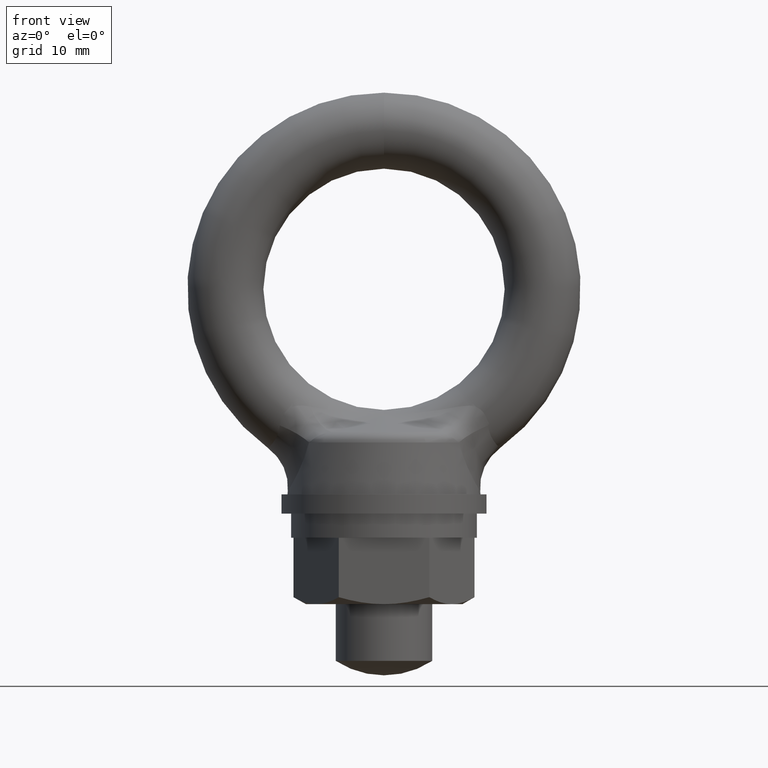
[diagram: clean part render]
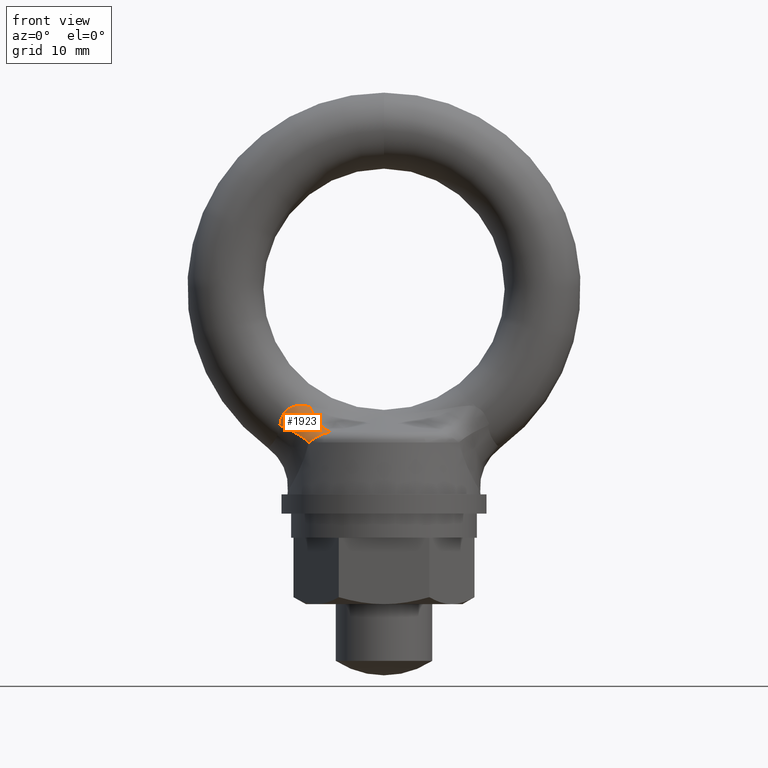
[diagram: same view with one face highlighted and labeled with its STEP entity id]
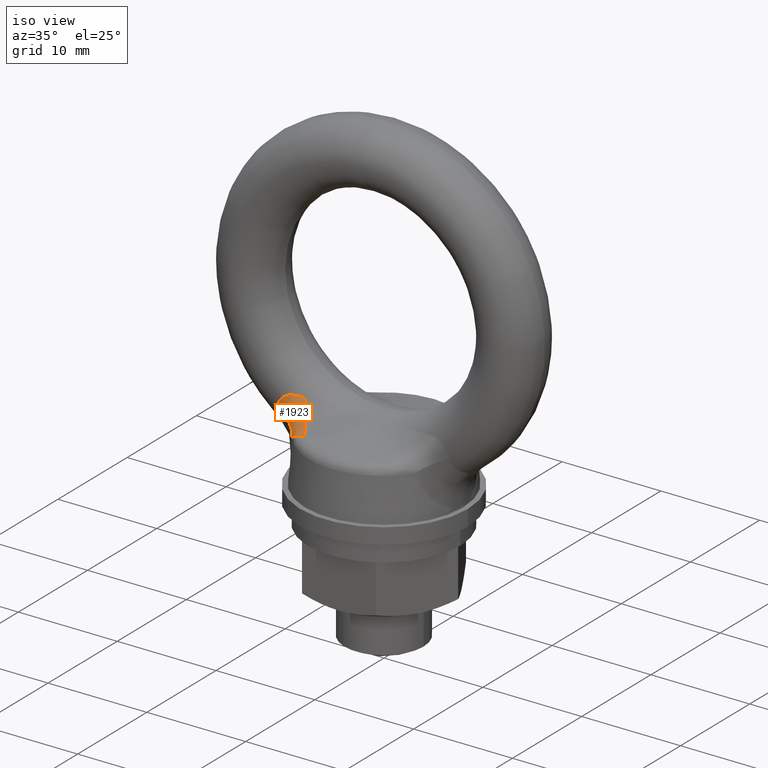
[diagram: same view with one face highlighted and labeled with its STEP entity id]
A machine part, front view. The second image highlights one B-rep face of the part: STEP entity #1923.
A second angle (iso view) of the same face is appended — the face is thin or edge-on in the first view.
In plain terms, the highlighted face is a freeform B-spline surface patch.
Its self-contained STEP definition (entity closure, byte-faithful):
#1870 = VERTEX_POINT ( 'NONE', #2676 ) ;
#1871 = VERTEX_POINT ( 'NONE', #2678 ) ;
#1917 = EDGE_CURVE ( 'NONE', #1871, #1870, #2623, .T. ) ;
#1923 = ADVANCED_FACE ( 'NONE', ( #2601 ), #2956, .F. ) ;
#1924 = EDGE_LOOP ( 'NONE', ( #1992, #1993, #1994, #1996 ) ) ;
#1988 = EDGE_CURVE ( 'NONE', #2008, #1989, #3318, .T. ) ;
#1989 = VERTEX_POINT ( 'NONE', #2739 ) ;
#1992 = ORIENTED_EDGE ( 'NONE', *, *, #2033, .T. ) ;
#1993 = ORIENTED_EDGE ( 'NONE', *, *, #1917, .F. ) ;
#1994 = ORIENTED_EDGE ( 'NONE', *, *, #1995, .F. ) ;
#1995 = EDGE_CURVE ( 'NONE', #1989, #1871, #2665, .T. ) ;
#1996 = ORIENTED_EDGE ( 'NONE', *, *, #1988, .F. ) ;
#2008 = VERTEX_POINT ( 'NONE', #3660 ) ;
#2033 = EDGE_CURVE ( 'NONE', #2008, #1870, #3782, .T. ) ;
#2239 = CARTESIAN_POINT ( 'NONE',  ( -7.687731019910080100, -3.069755996549758100, -9.768359361254232100 ) ) ;
#2431 = CARTESIAN_POINT ( 'NONE',  ( -7.281213677273273200, -2.968887560562097700, -9.653225894458497400 ) ) ;
#2432 = CARTESIAN_POINT ( 'NONE',  ( -7.555746027686884000, -3.038156767550210800, -9.718993856863784600 ) ) ;
#2599 = CARTESIAN_POINT ( 'NONE',  ( -7.139126643401124500, -2.931317358045899100, -9.637263160562232800 ) ) ;
#2600 = CARTESIAN_POINT ( 'NONE',  ( -6.929500092504966300, -2.972689276585328800, -9.922903800311665600 ) ) ;
#2601 = FACE_OUTER_BOUND ( 'NONE', #1924, .T. ) ;
#2610 = CARTESIAN_POINT ( 'NONE',  ( -6.210392761138069600, -4.421908272886815500, -12.69996661424272100 ) ) ;
#2611 = CARTESIAN_POINT ( 'NONE',  ( -6.108701972661631200, -4.549966588185697000, -12.60209868998017900 ) ) ;
#2612 = CARTESIAN_POINT ( 'NONE',  ( -5.992973220570785700, -4.664353236409687600, -12.50542347709155800 ) ) ;
#2613 = CARTESIAN_POINT ( 'NONE',  ( -5.731038722138584300, -4.864957518859458900, -12.31643497619548800 ) ) ;
#2614 = CARTESIAN_POINT ( 'NONE',  ( -5.586593888279771200, -4.949226157643265000, -12.22554908948153400 ) ) ;
#2616 = CARTESIAN_POINT ( 'NONE',  ( -5.272673823770076300, -5.085914180858788200, -12.06166346578539200 ) ) ;
#2617 = CARTESIAN_POINT ( 'NONE',  ( -5.103468905832866800, -5.137391313441046500, -11.98933713538986400 ) ) ;
#2618 = CARTESIAN_POINT ( 'NONE',  ( -4.750873693839806400, -5.224356366637041800, -11.87916124461906800 ) ) ;
#2619 = CARTESIAN_POINT ( 'NONE',  ( -4.567088987813725100, -5.261702362609206300, -11.84203912667232000 ) ) ;
#2620 = CARTESIAN_POINT ( 'NONE',  ( -4.383375090677884800, -5.307113808483039800, -11.82035886595320000 ) ) ;
#2623 = B_SPLINE_CURVE_WITH_KNOTS ( 'NONE', 3,
 ( #2620, #2619, #2618, #2617, #2616, #2614, #2613, #2612, #2611, #2610 ),
 .UNSPECIFIED., .F., .F.,
 ( 4, 2, 2, 2, 4 ),
 ( 0.0000000000000000000, 0.0005702075568999589700, 0.001140415113799917900, 0.001710622670699876900, 0.002280830227599835900 ),
 .UNSPECIFIED. ) ;
#2661 = DIRECTION ( 'NONE',  ( 0.4210359401465448300, -0.9070439554425767700, 0.0000000000000000000 ) ) ;
#2662 = DIRECTION ( 'NONE',  ( -0.8822757485810707200, -0.4095389170980973700, -0.2320934700671884500 ) ) ;
#2663 = CARTESIAN_POINT ( 'NONE',  ( -5.034637963763020500, -6.095621776704380300, -7.953304191631630700 ) ) ;
#2664 = AXIS2_PLACEMENT_3D ( 'NONE', #2663, #2662, #2661 ) ;
#2665 = CIRCLE ( 'NONE', #2664, 4.000000000000001800 ) ;
#2676 = CARTESIAN_POINT ( 'NONE',  ( -6.210392761138069600, -4.421908272886815500, -12.69996661424272100 ) ) ;
#2678 = CARTESIAN_POINT ( 'NONE',  ( -4.383375090677884800, -5.307113808483039800, -11.82035886595320000 ) ) ;
#2689 = CARTESIAN_POINT ( 'NONE',  ( -6.713842931349365300, -2.820060651338887500, -9.626082129971964100 ) ) ;
#2738 = CARTESIAN_POINT ( 'NONE',  ( -6.152873488992949700, -2.685483719806824900, -9.719800085488371300 ) ) ;
#2739 = CARTESIAN_POINT ( 'NONE',  ( -6.152873488992949700, -2.685483719806824900, -9.719800085488371300 ) ) ;
#2740 = CARTESIAN_POINT ( 'NONE',  ( -6.433098020521298600, -2.748763025688812300, -9.664568789829550300 ) ) ;
#2759 = CARTESIAN_POINT ( 'NONE',  ( -7.670983266815196300, -3.064440055428737900, -9.768959696681811500 ) ) ;
#2760 = CARTESIAN_POINT ( 'NONE',  ( -5.246962273072974800, -5.088756589960947700, -12.05495723409649300 ) ) ;
#2761 = CARTESIAN_POINT ( 'NONE',  ( -5.401512042342473800, -4.797234546224319600, -11.96932266300457900 ) ) ;
#2762 = CARTESIAN_POINT ( 'NONE',  ( -5.577486196440269800, -4.526527048795231600, -11.85162142931953800 ) ) ;
#2763 = CARTESIAN_POINT ( 'NONE',  ( -5.769189796503073200, -4.285394709292291700, -11.70566283969753800 ) ) ;
#2764 = CARTESIAN_POINT ( 'NONE',  ( -5.960893396565875700, -4.044262369789352700, -11.55970425007554100 ) ) ;
#2765 = CARTESIAN_POINT ( 'NONE',  ( -6.168299229587428400, -3.832739415553851400, -11.38550902445649400 ) ) ;
#2766 = CARTESIAN_POINT ( 'NONE',  ( -6.384695007701148800, -3.657671026544800700, -11.18871456056858100 ) ) ;
#2767 = CARTESIAN_POINT ( 'NONE',  ( -6.601090785814869300, -3.482602637535749900, -10.99192009668066900 ) ) ;
#2768 = CARTESIAN_POINT ( 'NONE',  ( -6.826445789683550200, -3.344013662673518200, -10.77255432896739300 ) ) ;
#2769 = CARTESIAN_POINT ( 'NONE',  ( -7.053466712998934800, -3.246388904115928000, -10.53771629475044400 ) ) ;
#2770 = CARTESIAN_POINT ( 'NONE',  ( -7.280487636314319400, -3.148764145558337300, -10.30287826053349300 ) ) ;
#2771 = CARTESIAN_POINT ( 'NONE',  ( -7.509142250307606400, -3.092117458628161700, -10.05260129296714100 ) ) ;
#2772 = CARTESIAN_POINT ( 'NONE',  ( -7.732030338177949600, -3.078281758013508500, -9.794984618269676700 ) ) ;
#2773 = CARTESIAN_POINT ( 'NONE',  ( -5.286419740491149700, -5.074857045553559800, -12.07285761770837100 ) ) ;
#2774 = CARTESIAN_POINT ( 'NONE',  ( -5.440035607758526100, -4.784593041030229100, -11.98445028468013800 ) ) ;
#2775 = CARTESIAN_POINT ( 'NONE',  ( -5.615673110004608200, -4.515503856714971700, -11.86490877777958300 ) ) ;
#2776 = CARTESIAN_POINT ( 'NONE',  ( -5.807674354517804900, -4.276257571905572900, -11.71808433079838900 ) ) ;
#2777 = CARTESIAN_POINT ( 'NONE',  ( -5.999675599031000700, -4.037011287096173200, -11.57125988381719500 ) ) ;
#2778 = CARTESIAN_POINT ( 'NONE',  ( -6.208013583066493100, -3.827641545371197400, -11.39717314691240600 ) ) ;
#2779 = CARTESIAN_POINT ( 'NONE',  ( -6.425976778136380600, -3.654892556561456700, -11.20143208268863500 ) ) ;
#2780 = CARTESIAN_POINT ( 'NONE',  ( -8.638270361975665800, -2.966346601564373600, -11.28273147987915200 ) ) ;
#2781 = CARTESIAN_POINT ( 'NONE',  ( -7.245076136645424800, -3.417741161278680600, -11.44889959338879800 ) ) ;
#2782 = CARTESIAN_POINT ( 'NONE',  ( -7.483598750252910200, -3.310244827118535000, -11.28956445112145000 ) ) ;
#2783 = CARTESIAN_POINT ( 'NONE',  ( -7.732201092579455100, -3.236161436122179800, -11.13031946442684900 ) ) ;
#2784 = CARTESIAN_POINT ( 'NONE',  ( -7.980803434905998200, -3.162078045125824100, -10.97107447773224800 ) ) ;
#2785 = CARTESIAN_POINT ( 'NONE',  ( -8.239463129560668600, -3.121414262719512100, -10.81193391902331100 ) ) ;
#2786 = CARTESIAN_POINT ( 'NONE',  ( -8.501498300200585900, -3.115221383989821300, -10.65699877259385200 ) ) ;
#2787 = CARTESIAN_POINT ( 'NONE',  ( -5.987122256135830200, -4.662626492423098200, -12.50442520172821000 ) ) ;
#2788 = CARTESIAN_POINT ( 'NONE',  ( -8.606536626606414900, -3.039894595714518500, -11.02210865402498100 ) ) ;
#2789 = CARTESIAN_POINT ( 'NONE',  ( -6.158554858181656000, -4.487187288033442900, -12.65007745479694800 ) ) ;
#2790 = CARTESIAN_POINT ( 'NONE',  ( -6.291226732873971300, -4.276064684974689300, -12.52591403577916800 ) ) ;
#2791 = CARTESIAN_POINT ( 'NONE',  ( -7.337477441867800800, -3.378487954449585800, -11.59497586728322300 ) ) ;
#2792 = CARTESIAN_POINT ( 'NONE',  ( -7.571341817329708200, -3.273778216948478800, -11.45167560940329900 ) ) ;
#2793 = CARTESIAN_POINT ( 'NONE',  ( -7.815819080018766100, -3.199228797658139300, -11.31080975859156900 ) ) ;
#2794 = CARTESIAN_POINT ( 'NONE',  ( -8.060296342707824000, -3.124679378367799700, -11.16994390777983900 ) ) ;
#2795 = CARTESIAN_POINT ( 'NONE',  ( -8.315367831233590600, -3.080295967779870500, -11.03152321658078500 ) ) ;
#2796 = CARTESIAN_POINT ( 'NONE',  ( -8.143124693277963300, -3.043887947345238900, -11.49211483748690700 ) ) ;
#2797 = CARTESIAN_POINT ( 'NONE',  ( -8.387862949493504400, -2.992083552728833900, -11.38372691852692900 ) ) ;
#2798 = CARTESIAN_POINT ( 'NONE',  ( -5.970532647643378400, -4.387192580609274200, -12.02825966723517400 ) ) ;
#2799 = CARTESIAN_POINT ( 'NONE',  ( -6.160623691673925400, -4.170567881343173700, -11.87877069975228000 ) ) ;
#2800 = CARTESIAN_POINT ( 'NONE',  ( -6.350714735704471500, -3.953943182077073600, -11.72928173226938700 ) ) ;
#2801 = CARTESIAN_POINT ( 'NONE',  ( -6.561566292752525300, -3.766918328019699800, -11.56333996991188000 ) ) ;
#2802 = CARTESIAN_POINT ( 'NONE',  ( -6.786982569877532800, -3.614988973491556600, -11.38582154835621000 ) ) ;
#2803 = CARTESIAN_POINT ( 'NONE',  ( -7.012398847002540200, -3.463059618963413300, -11.20830312680054200 ) ) ;
#2804 = CARTESIAN_POINT ( 'NONE',  ( -7.252353503444934900, -3.346243517494327200, -11.01922878975750700 ) ) ;
#2805 = CARTESIAN_POINT ( 'NONE',  ( -7.499795562739315400, -3.267973265869248400, -10.82415441482692800 ) ) ;
#2806 = CARTESIAN_POINT ( 'NONE',  ( -7.747237622033695800, -3.189703014244169600, -10.62908003989635100 ) ) ;
#2807 = CARTESIAN_POINT ( 'NONE',  ( -8.002138169623075100, -3.149987758643249400, -10.42802842226974600 ) ) ;
#2808 = CARTESIAN_POINT ( 'NONE',  ( -8.257007049705864100, -3.149994516771878600, -10.22690738738894300 ) ) ;
#2809 = CARTESIAN_POINT ( 'NONE',  ( -5.692630692540992000, -4.881438677225352400, -12.29566022110292200 ) ) ;
#2810 = CARTESIAN_POINT ( 'NONE',  ( -5.835242819433442000, -4.615802973279331300, -12.18108194192787000 ) ) ;
#2811 = CARTESIAN_POINT ( 'NONE',  ( -6.003775804158309800, -4.372416534515990900, -12.04725882432544100 ) ) ;
#2812 = CARTESIAN_POINT ( 'NONE',  ( -6.193342497148568000, -4.158336473033574300, -11.89807204120090500 ) ) ;
#2813 = CARTESIAN_POINT ( 'NONE',  ( -6.382909190138826200, -3.944256411551157800, -11.74888525807636900 ) ) ;
#2814 = CARTESIAN_POINT ( 'NONE',  ( -6.593488025714560100, -3.759507075726333800, -11.58435178170955900 ) ) ;
#2815 = CARTESIAN_POINT ( 'NONE',  ( -6.818972333473924500, -3.609445311387661000, -11.40924253265333400 ) ) ;
#2816 = CARTESIAN_POINT ( 'NONE',  ( -7.044456641233288100, -3.459383547048988600, -11.23413328359710700 ) ) ;
#2817 = CARTESIAN_POINT ( 'NONE',  ( -7.284820767267831300, -3.344026421199226600, -11.04846817687600700 ) ) ;
#2818 = CARTESIAN_POINT ( 'NONE',  ( -7.533094006877290000, -3.266718723277828800, -10.85763017951962600 ) ) ;
#2819 = CARTESIAN_POINT ( 'NONE',  ( -7.781367246486748700, -3.189411025356431000, -10.66679218216324500 ) ) ;
#2820 = CARTESIAN_POINT ( 'NONE',  ( -8.037521350678360900, -3.150161547812988100, -10.47080299304818100 ) ) ;
#2821 = CARTESIAN_POINT ( 'NONE',  ( -8.294127381507474100, -3.150108344288771200, -10.27534434111869600 ) ) ;
#2822 = CARTESIAN_POINT ( 'NONE',  ( -5.727022553237098600, -4.859879480258968900, -12.31788522595592500 ) ) ;
#2823 = CARTESIAN_POINT ( 'NONE',  ( -5.868740153250576500, -4.597346636213478300, -12.20155193554739400 ) ) ;
#2824 = CARTESIAN_POINT ( 'NONE',  ( -6.036477766308732600, -4.356914149110272300, -12.06711137091902100 ) ) ;
#2825 = CARTESIAN_POINT ( 'NONE',  ( -8.574967144615801100, -3.067134142772247600, -10.89883976370392000 ) ) ;
#2826 = CARTESIAN_POINT ( 'NONE',  ( -6.103538827746545400, -4.548250190561528700, -12.60103425833281700 ) ) ;
#2827 = CARTESIAN_POINT ( 'NONE',  ( -6.237172025401406500, -4.329293703918652100, -12.47585353837235500 ) ) ;
#2828 = CARTESIAN_POINT ( 'NONE',  ( -6.394995897141700200, -4.128360767717470700, -12.34504325655944300 ) ) ;
#2829 = CARTESIAN_POINT ( 'NONE',  ( -6.225440381929806800, -4.145454276757679900, -11.91840716085605600 ) ) ;
#2830 = CARTESIAN_POINT ( 'NONE',  ( -6.414402997550880900, -3.933994404405087400, -11.76970295079309100 ) ) ;
#2831 = CARTESIAN_POINT ( 'NONE',  ( -6.624569730741310300, -3.751530511855067900, -11.60675153028037300 ) ) ;
#2832 = CARTESIAN_POINT ( 'NONE',  ( -6.849932472588522900, -3.603277965144572100, -11.43421066744793700 ) ) ;
#2833 = CARTESIAN_POINT ( 'NONE',  ( -7.075295214435734600, -3.455025418434076300, -11.26166980461550100 ) ) ;
#2834 = CARTESIAN_POINT ( 'NONE',  ( -7.315829055168457300, -3.341000599005429000, -11.07955856243915300 ) ) ;
#2835 = CARTESIAN_POINT ( 'NONE',  ( -7.564657528520692500, -3.264462771336132300, -10.89308162134639300 ) ) ;
#2836 = CARTESIAN_POINT ( 'NONE',  ( -7.813486001872926900, -3.187924943666835500, -10.70660468025363300 ) ) ;
#2837 = CARTESIAN_POINT ( 'NONE',  ( -8.070581602300627800, -3.148882565973202900, -10.51578263784735000 ) ) ;
#2838 = CARTESIAN_POINT ( 'NONE',  ( -8.328594086538700500, -3.148451809342212900, -10.32606852395631200 ) ) ;
#2839 = CARTESIAN_POINT ( 'NONE',  ( -5.760900097523324000, -4.837159204870110900, -12.34059829249801000 ) ) ;
#2840 = CARTESIAN_POINT ( 'NONE',  ( -5.901774620168319000, -4.577904760923777500, -12.22272464354135800 ) ) ;
#2841 = CARTESIAN_POINT ( 'NONE',  ( -6.573423188515125300, -3.950013640822228400, -12.21157621846499300 ) ) ;
#2842 = CARTESIAN_POINT ( 'NONE',  ( -6.751850479888551200, -3.771666513926985600, -12.07810918037054300 ) ) ;
#2843 = CARTESIAN_POINT ( 'NONE',  ( -6.950868786449462700, -3.615917571915809400, -11.94199465151085200 ) ) ;
#2844 = CARTESIAN_POINT ( 'NONE',  ( -7.165954885440893200, -3.486304175634990200, -11.80632251667454100 ) ) ;
#2845 = CARTESIAN_POINT ( 'NONE',  ( -6.726673857609196000, -3.480602534323957700, -11.03705221736536400 ) ) ;
#2846 = CARTESIAN_POINT ( 'NONE',  ( -6.958130145309438900, -3.349190396471075200, -10.82422615832971000 ) ) ;
#2847 = CARTESIAN_POINT ( 'NONE',  ( -7.193027001654959600, -3.258756494738037600, -10.59850941036612000 ) ) ;
#2848 = CARTESIAN_POINT ( 'NONE',  ( -7.427923858000480300, -3.168322593005000100, -10.37279266240253200 ) ) ;
#2849 = CARTESIAN_POINT ( 'NONE',  ( -7.666229023166330600, -3.118879341761675600, -10.13421621532123100 ) ) ;
#2850 = CARTESIAN_POINT ( 'NONE',  ( -7.900355542772931700, -3.112000314426404100, -9.890374307357625100 ) ) ;
#2851 = CARTESIAN_POINT ( 'NONE',  ( -5.402983331881432400, -5.029374207256203100, -12.12954405148348900 ) ) ;
#2852 = CARTESIAN_POINT ( 'NONE',  ( -5.553581640842129900, -4.743954002434464600, -12.03301421460235500 ) ) ;
#2853 = CARTESIAN_POINT ( 'NONE',  ( -5.727771767420964700, -4.480525463828811900, -11.90837414744153300 ) ) ;
#2854 = CARTESIAN_POINT ( 'NONE',  ( -5.920048495379881500, -4.247413826971936100, -11.75956355735659800 ) ) ;
#2855 = CARTESIAN_POINT ( 'NONE',  ( -6.112325223338799200, -4.014302190115060400, -11.61075296727166500 ) ) ;
#2856 = CARTESIAN_POINT ( 'NONE',  ( -6.322662532440459900, -3.811538996710717200, -11.43779199346378100 ) ) ;
#2857 = CARTESIAN_POINT ( 'NONE',  ( -6.544412499392944200, -3.645532107857250900, -11.24614698412781300 ) ) ;
#2858 = CARTESIAN_POINT ( 'NONE',  ( -6.766162466345427600, -3.479525219003784600, -11.05450197479184700 ) ) ;
#2859 = CARTESIAN_POINT ( 'NONE',  ( -6.999295080058805000, -3.350297095393595500, -10.84419886113103200 ) ) ;
#2860 = CARTESIAN_POINT ( 'NONE',  ( -6.466001808123107400, -3.651851225180492700, -11.21582242888293000 ) ) ;
#2861 = CARTESIAN_POINT ( 'NONE',  ( -6.685306915407732500, -3.481373051037836700, -11.02137161791511300 ) ) ;
#2862 = CARTESIAN_POINT ( 'NONE',  ( -6.914813934336097900, -3.347615009742048300, -10.80627465578731400 ) ) ;
#2863 = CARTESIAN_POINT ( 'NONE',  ( -7.147173063437763900, -3.254860608844176300, -10.57741987199775100 ) ) ;
#2864 = CARTESIAN_POINT ( 'NONE',  ( -7.379532192539430800, -3.162106207946303800, -10.34856508820818800 ) ) ;
#2865 = CARTESIAN_POINT ( 'NONE',  ( -7.614711139083657300, -3.110368338237017700, -10.10598428846184900 ) ) ;
#2866 = CARTESIAN_POINT ( 'NONE',  ( -7.845178462092310000, -3.101303868742119700, -9.857445952899350800 ) ) ;
#2867 = CARTESIAN_POINT ( 'NONE',  ( -5.364616577846164500, -5.045097562878532400, -12.11023838359308000 ) ) ;
#2868 = CARTESIAN_POINT ( 'NONE',  ( -5.516251844044570700, -4.757891277729730600, -12.01637000960432300 ) ) ;
#2869 = CARTESIAN_POINT ( 'NONE',  ( -5.690995178626463900, -4.492449901214827800, -11.89335038486290100 ) ) ;
#2870 = CARTESIAN_POINT ( 'NONE',  ( -5.883283773508511900, -4.257223320712293800, -11.74509612586047400 ) ) ;
#2871 = CARTESIAN_POINT ( 'NONE',  ( -6.075572368390560000, -4.021996740209759800, -11.59684186685805000 ) ) ;
#2872 = CARTESIAN_POINT ( 'NONE',  ( -6.285379818610471700, -3.817017253275098600, -11.42337333278908500 ) ) ;
#2873 = CARTESIAN_POINT ( 'NONE',  ( -6.506026838109834300, -3.648809893799528100, -11.23021277507722400 ) ) ;
#2874 = CARTESIAN_POINT ( 'NONE',  ( -6.210392761138069600, -4.421908272886824400, -12.69996661424272800 ) ) ;
#2875 = CARTESIAN_POINT ( 'NONE',  ( -6.342055037994665400, -4.218586726463222200, -12.57793491704170600 ) ) ;
#2876 = CARTESIAN_POINT ( 'NONE',  ( -7.207454976791545700, -3.457625920709532300, -11.88029232661750200 ) ) ;
#2877 = CARTESIAN_POINT ( 'NONE',  ( -7.419323322429162800, -3.330556576315576200, -11.75159414177480100 ) ) ;
#2878 = CARTESIAN_POINT ( 'NONE',  ( -7.646943959158116800, -3.228022889678048700, -11.62458008102627500 ) ) ;
#2879 = CARTESIAN_POINT ( 'NONE',  ( -7.885390782103471000, -3.152245194916030200, -11.50199245413386300 ) ) ;
#2880 = CARTESIAN_POINT ( 'NONE',  ( -8.123837605048827000, -3.076467500154011200, -11.37940482724145100 ) ) ;
#2881 = CARTESIAN_POINT ( 'NONE',  ( -8.373095597180341800, -3.027450584520450700, -11.26125131313951600 ) ) ;
#2882 = CARTESIAN_POINT ( 'NONE',  ( -8.627770177032605400, -3.006259342083982000, -11.15008067413278600 ) ) ;
#2883 = CARTESIAN_POINT ( 'NONE',  ( -6.122939465198287600, -4.428319119065444700, -12.37934986323895700 ) ) ;
#2884 = CARTESIAN_POINT ( 'NONE',  ( -6.284148741247873800, -4.213786326607717600, -12.24488173374410800 ) ) ;
#2885 = CARTESIAN_POINT ( 'NONE',  ( -6.466749728644996000, -4.024346935871100200, -12.10435716132885500 ) ) ;
#2886 = CARTESIAN_POINT ( 'NONE',  ( -6.649350716042118100, -3.834907545134482300, -11.96383258891360100 ) ) ;
#2887 = CARTESIAN_POINT ( 'NONE',  ( -6.853328261292700700, -3.670577254349138400, -11.81726322233549300 ) ) ;
#2888 = CARTESIAN_POINT ( 'NONE',  ( -7.073621080297988900, -3.535431191947069800, -11.66828228753185400 ) ) ;
#2889 = CARTESIAN_POINT ( 'NONE',  ( -7.293913899303277900, -3.400285129545000700, -11.51930135272821500 ) ) ;
#2890 = CARTESIAN_POINT ( 'NONE',  ( -7.134743610243464900, -3.444637756882539900, -11.32025983433339700 ) ) ;
#2891 = CARTESIAN_POINT ( 'NONE',  ( -7.375147436388933100, -3.333051090800117400, -11.14550601005344400 ) ) ;
#2892 = CARTESIAN_POINT ( 'NONE',  ( -7.624537972856531500, -3.257711451626043700, -10.96794746779558200 ) ) ;
#2893 = CARTESIAN_POINT ( 'NONE',  ( -7.873928509324128900, -3.182371812451970000, -10.79038892553772100 ) ) ;
#2894 = CARTESIAN_POINT ( 'NONE',  ( -8.132279853775690600, -3.143287022869901900, -10.61004409142924800 ) ) ;
#2895 = CARTESIAN_POINT ( 'NONE',  ( -8.392430793801462800, -3.141540437730855100, -10.43190945276440100 ) ) ;
#2896 = CARTESIAN_POINT ( 'NONE',  ( -5.828262570963138600, -4.790455905439663400, -12.38660495816619200 ) ) ;
#2897 = CARTESIAN_POINT ( 'NONE',  ( -5.967499797259329800, -4.537948213489952000, -12.26586242277778300 ) ) ;
#2898 = CARTESIAN_POINT ( 'NONE',  ( -7.236441680347841300, -3.261931533519467000, -10.62188367748169100 ) ) ;
#2899 = CARTESIAN_POINT ( 'NONE',  ( -7.473588280636877600, -3.173565971645337900, -10.39956849383235000 ) ) ;
#2900 = CARTESIAN_POINT ( 'NONE',  ( -7.714716770385038600, -3.126074925784860800, -10.16527131769852900 ) ) ;
#2901 = CARTESIAN_POINT ( 'NONE',  ( -7.952205487528909900, -3.120958949921480900, -9.926396069955147900 ) ) ;
#2902 = CARTESIAN_POINT ( 'NONE',  ( -5.440528576997341900, -5.012792549560182400, -12.14931927328692200 ) ) ;
#2903 = CARTESIAN_POINT ( 'NONE',  ( -5.590091151211447100, -4.729394914089970000, -12.05024952610595600 ) ) ;
#2904 = CARTESIAN_POINT ( 'NONE',  ( -5.763664575588300000, -4.468148414583331500, -11.92413853173697900 ) ) ;
#2905 = CARTESIAN_POINT ( 'NONE',  ( -5.955808612461902700, -4.237241188434159000, -11.77493893318467300 ) ) ;
#2906 = CARTESIAN_POINT ( 'NONE',  ( -6.147952649335504600, -4.006333962284986500, -11.62573933463236900 ) ) ;
#2907 = CARTESIAN_POINT ( 'NONE',  ( -6.358641728667716800, -3.805796738037739800, -11.45347098699861200 ) ) ;
#2908 = CARTESIAN_POINT ( 'NONE',  ( -6.581272312680145100, -3.641914868215139200, -11.26353322348674100 ) ) ;
#2909 = CARTESIAN_POINT ( 'NONE',  ( -6.803902896692572500, -3.478032998392538700, -11.07359545997487000 ) ) ;
#2910 = CARTESIAN_POINT ( 'NONE',  ( -7.038445358275174300, -3.350828291975649800, -10.86601355701779800 ) ) ;
#2911 = CARTESIAN_POINT ( 'NONE',  ( -7.277548533283102500, -3.264287671718494100, -10.64729366549260400 ) ) ;
#2912 = CARTESIAN_POINT ( 'NONE',  ( -6.643939973206268900, -3.482143567751716100, -11.00569101846486200 ) ) ;
#2913 = CARTESIAN_POINT ( 'NONE',  ( -6.871497723362757000, -3.346039623013021400, -10.78832315324491900 ) ) ;
#2914 = CARTESIAN_POINT ( 'NONE',  ( -7.101319125220569200, -3.250964722950314500, -10.55633033362938300 ) ) ;
#2915 = CARTESIAN_POINT ( 'NONE',  ( -7.331140527078381400, -3.155889822887607600, -10.32433751401384500 ) ) ;
#2916 = CARTESIAN_POINT ( 'NONE',  ( -7.563193255000983900, -3.101857334712360400, -10.07775236160246900 ) ) ;
#2917 = CARTESIAN_POINT ( 'NONE',  ( -7.790001381411688200, -3.090607423057835300, -9.824517598441076400 ) ) ;
#2918 = CARTESIAN_POINT ( 'NONE',  ( -5.325518159168656700, -5.059977304216046100, -12.09154800065072500 ) ) ;
#2919 = CARTESIAN_POINT ( 'NONE',  ( -5.478143725901548900, -4.771242159379980300, -12.00041014714223000 ) ) ;
#2920 = CARTESIAN_POINT ( 'NONE',  ( -5.653334144315536500, -4.503976878964899700, -11.87912958132124100 ) ) ;
#2921 = CARTESIAN_POINT ( 'NONE',  ( -5.845479064013158400, -4.266740446308933300, -11.73159022832943200 ) ) ;
#2922 = CARTESIAN_POINT ( 'NONE',  ( -6.037623983710780400, -4.029504013652966100, -11.58405087533762200 ) ) ;
#2923 = CARTESIAN_POINT ( 'NONE',  ( -6.246696700838482400, -3.822329399323148600, -11.41027323985074600 ) ) ;
#2924 = CARTESIAN_POINT ( 'NONE',  ( -7.035701199112102300, -3.548723203598913600, -12.08077719434983300 ) ) ;
#2925 = CARTESIAN_POINT ( 'NONE',  ( -7.243715597465758500, -3.424014369338765000, -11.95935208062144800 ) ) ;
#2927 = CARTESIAN_POINT ( 'NONE',  ( -6.793276577300274800, -3.218399947586137800, -10.46672773614975700 ) ) ;
#2928 = CARTESIAN_POINT ( 'NONE',  ( -7.004016308533702600, -3.105949106740868000, -10.22060638485299400 ) ) ;
#2929 = CARTESIAN_POINT ( 'NONE',  ( -7.213412702926724800, -3.033356198711588000, -9.955082110718386400 ) ) ;
#2930 = CARTESIAN_POINT ( 'NONE',  ( -7.414614479907586800, -3.002997829178651700, -9.678844522526130600 ) ) ;
#2931 = CARTESIAN_POINT ( 'NONE',  ( -5.127074929622108500, -5.128091074887000100, -12.00360187031553500 ) ) ;
#2932 = CARTESIAN_POINT ( 'NONE',  ( -5.284108016763577900, -4.833548989371516700, -11.92630158085806800 ) ) ;
#2933 = CARTESIAN_POINT ( 'NONE',  ( -5.460635376538389700, -4.558557451893131300, -11.81434806894155200 ) ) ;
#2934 = CARTESIAN_POINT ( 'NONE',  ( -5.650887871776793000, -4.312103047802349200, -11.67140098207840600 ) ) ;
#2935 = CARTESIAN_POINT ( 'NONE',  ( -5.841140367015197100, -4.065648643711567100, -11.52845389521526100 ) ) ;
#2936 = CARTESIAN_POINT ( 'NONE',  ( -6.045090450316736000, -3.847767049034000100, -11.35453393369057700 ) ) ;
#2937 = CARTESIAN_POINT ( 'NONE',  ( -6.256072194260354100, -3.665578104283805100, -11.15532513799123900 ) ) ;
#2938 = CARTESIAN_POINT ( 'NONE',  ( -6.467053938203972200, -3.483389159533610200, -10.95611634229189900 ) ) ;
#2939 = CARTESIAN_POINT ( 'NONE',  ( -6.685036789129575200, -3.336919233842612400, -10.73164755168276600 ) ) ;
#2940 = CARTESIAN_POINT ( 'NONE',  ( -6.902895649127931900, -3.230954096407389300, -10.48925406564418800 ) ) ;
#2941 = CARTESIAN_POINT ( 'NONE',  ( -7.120754509126288500, -3.124988958972166200, -10.24686057960561000 ) ) ;
#2942 = CARTESIAN_POINT ( 'NONE',  ( -7.338457824119507800, -3.059543941378426000, -9.986577483393835700 ) ) ;
#2943 = CARTESIAN_POINT ( 'NONE',  ( -7.548889124089689600, -3.036756650259197200, -9.716909853506082900 ) ) ;
#2944 = CARTESIAN_POINT ( 'NONE',  ( -5.206999825256019700, -5.101868084936298500, -12.03783877950284200 ) ) ;
#2945 = CARTESIAN_POINT ( 'NONE',  ( -5.362377367149508500, -4.809339360606718300, -11.95498230228907500 ) ) ;
#2946 = CARTESIAN_POINT ( 'NONE',  ( -5.538535923139643400, -4.537203849827864800, -11.83919697586021000 ) ) ;
#2947 = CARTESIAN_POINT ( 'NONE',  ( -5.729755821594313400, -4.294297488795644200, -11.69424222049116200 ) ) ;
#2948 = CARTESIAN_POINT ( 'NONE',  ( -5.920975720048982500, -4.051391127763424500, -11.54928746512211500 ) ) ;
#2949 = CARTESIAN_POINT ( 'NONE',  ( -6.127229636497197900, -3.837748626713900700, -11.37518399420118900 ) ) ;
#2950 = CARTESIAN_POINT ( 'NONE',  ( -6.341820736554217900, -3.660306719124468700, -11.17758475304280100 ) ) ;
#2951 = CARTESIAN_POINT ( 'NONE',  ( -6.556411836611237800, -3.482864811535036700, -10.97998551188441300 ) ) ;
#2952 = CARTESIAN_POINT ( 'NONE',  ( -6.779309456165558200, -3.341648853063216200, -10.75891873653918300 ) ) ;
#2953 = CARTESIAN_POINT ( 'NONE',  ( -7.003276358375266900, -3.241243968213081600, -10.52156221838169100 ) ) ;
#2954 = CARTESIAN_POINT ( 'NONE',  ( -7.227243260584975500, -3.140839083362946900, -10.28420570022419900 ) ) ;
#2955 = CARTESIAN_POINT ( 'NONE',  ( -7.452247441578239600, -3.081259619544916500, -10.03059335644270600 ) ) ;
#2956 = B_SPLINE_SURFACE_WITH_KNOTS ( 'NONE', 3, 3, ( 
 ( #2780, #2797, #2796, #2994, #2993, #2992, #2925, #2924, #2959, #2958, #2957, #2875, #2874 ),
 ( #2882, #2881, #2880, #2879, #2878, #2877, #2876, #2986, #2985, #2984, #2983, #2790, #2789 ),
 ( #2788, #2991, #2990, #2989, #2988, #2987, #2844, #2843, #2842, #2841, #2828, #2827, #2826 ),
 ( #2825, #2795, #2794, #2793, #2792, #2791, #3048, #3047, #3046, #3045, #3044, #3043, #2974 ),
 ( #2973, #2972, #2971, #2970, #2969, #2889, #2888, #2887, #2886, #2885, #2884, #2883, #2787 ),
 ( #2786, #2785, #2784, #2783, #2782, #2781, #3099, #3098, #3097, #3096, #3095, #3094, #3093 ),
 ( #3002, #3001, #3000, #2999, #2998, #2997, #2996, #2995, #2982, #2981, #2980, #2979, #2978 ),
 ( #2977, #2976, #2975, #3056, #3055, #3054, #3053, #3052, #3051, #3050, #3049, #2897, #2896 ),
 ( #2895, #2894, #2893, #2892, #2891, #2890, #3011, #3010, #3009, #3008, #3007, #3006, #3005 ),
 ( #3004, #3003, #2968, #2967, #2966, #2965, #2964, #2963, #2962, #2961, #2960, #2840, #2839 ),
 ( #2838, #2837, #2836, #2835, #2834, #2833, #2832, #2831, #2830, #2829, #2824, #2823, #2822 ),
 ( #2821, #2820, #2819, #2818, #2817, #2816, #2815, #2814, #2813, #2812, #2811, #2810, #2809 ),
 ( #2808, #2807, #2806, #2805, #2804, #2803, #2802, #2801, #2800, #2799, #2798, #3042, #3041 ),
 ( #3040, #3039, #3038, #3037, #3036, #3035, #3034, #3033, #3032, #3031, #3030, #3029, #3028 ),
 ( #3027, #3026, #3025, #3024, #3023, #3022, #3021, #3020, #3019, #3018, #3017, #3016, #3015 ),
 ( #3014, #3013, #3012, #2911, #2910, #2909, #2908, #2907, #2906, #2905, #2904, #2903, #2902 ),
 ( #2901, #2900, #2899, #2898, #2859, #2858, #2857, #2856, #2855, #2854, #2853, #2852, #2851 ),
 ( #2850, #2849, #2848, #2847, #2846, #2845, #2873, #2872, #2871, #2870, #2869, #2868, #2867 ),
 ( #2866, #2865, #2864, #2863, #2862, #2861, #2860, #2923, #2922, #2921, #2920, #2919, #2918 ),
 ( #2917, #2916, #2915, #2914, #2913, #2912, #2779, #2778, #2777, #2776, #2775, #2774, #2773 ),
 ( #2772, #2771, #2770, #2769, #2768, #2767, #2766, #2765, #2764, #2763, #2762, #2761, #2760 ),
 ( #2759, #2955, #2954, #2953, #2952, #2951, #2950, #2949, #2948, #2947, #2946, #2945, #2944 ),
 ( #2943, #2942, #2941, #2940, #2939, #2938, #2937, #2936, #2935, #2934, #2933, #2932, #2931 ),
 ( #2930, #2929, #2928, #2927, #3092, #3091, #3090, #3089, #3088, #3087, #3086, #3085, #3084 ),
 ( #3083, #3082, #3081, #3080, #3079, #3078, #3077, #3076, #3075, #3074, #3073, #3072, #3071 ),
 ( #3070, #3069, #3068, #3067, #3066, #3065, #3064, #3063, #3062, #3061, #3060, #3059, #3058 ),
 ( #3057, #2600, #3362, #3221, #3360, #3361, #3294, #3364, #3363, #3164, #3163, #3146, #3145 ),
 ( #3101, #3100, #3279, #3278, #3277, #3105, #3104, #3103, #3102, #3144, #3143, #3142, #3338 ),
 ( #3337, #3336, #3335, #3168, #3167, #3166, #3165, #3359, #3358, #3357, #3356, #3355, #3370 ),
 ( #3369, #3368, #3367, #3366, #3365, #3241, #3240, #3239, #3238, #3237, #3236, #3235, #3234 ),
 ( #3233, #3232, #3231, #3230, #3229, #3228, #3227, #3226, #3225, #3224, #3223, #3222, #3162 ),
 ( #3161, #3160, #3159, #3158, #3157, #3156, #3155, #3154, #3153, #3152, #3151, #3150, #3149 ),
 ( #3148, #3147, #3354, #3353, #3352, #3351, #3350, #3349, #3348, #3347, #3346, #3345, #3344 ),
 ( #3343, #3342, #3341, #3340, #3339, #3317, #3316, #3315, #3314, #3313, #3312, #3311, #3310 ) ),
 .UNSPECIFIED., .F., .F., .F.,
 ( 4, 3, 3, 3, 3, 3, 3, 3, 3, 3, 3, 4 ),
 ( 4, 3, 3, 3, 4 ),
 ( 3.686287386450715100E-018, 0.0008303381638338059100, 0.001660676327667608100, 0.002075845409584509300, 0.002491014491501410500, 0.003321352655335212800, 0.003736521737252114000, 0.004151690819169015200, 0.004982028983002817500, 0.005397198064919718700, 0.005812367146836619800, 0.006642705310670422200 ),
 ( 0.0000000000000000000, 0.2500000000000000000, 0.5000000000000000000, 0.7500000000000000000, 1.000000000000000000 ),
 .UNSPECIFIED. ) ;
#2957 = CARTESIAN_POINT ( 'NONE',  ( -6.496177786806779200, -4.031265890506586100, -12.45349403530030600 ) ) ;
#2958 = CARTESIAN_POINT ( 'NONE',  ( -6.669591796821453800, -3.863797624733556800, -12.32920283449141900 ) ) ;
#2959 = CARTESIAN_POINT ( 'NONE',  ( -6.843005806836127500, -3.696329358960528400, -12.20491163368253100 ) ) ;
#2960 = CARTESIAN_POINT ( 'NONE',  ( -6.068705263663316500, -4.340548662468060900, -12.08787358808895200 ) ) ;
#2961 = CARTESIAN_POINT ( 'NONE',  ( -6.256992404394450700, -4.131773231585017700, -11.93984160826828000 ) ) ;
#2962 = CARTESIAN_POINT ( 'NONE',  ( -6.445279545125584000, -3.922997800701974600, -11.79180962844760700 ) ) ;
#2963 = CARTESIAN_POINT ( 'NONE',  ( -6.654902999163220500, -3.742825417616769000, -11.63061259293165900 ) ) ;
#2964 = CARTESIAN_POINT ( 'NONE',  ( -6.879961205751410300, -3.596328502637538400, -11.46078870620305400 ) ) ;
#2965 = CARTESIAN_POINT ( 'NONE',  ( -7.105019412339599300, -3.449831587658308300, -11.29096481947444800 ) ) ;
#2966 = CARTESIAN_POINT ( 'NONE',  ( -7.345488245778694700, -3.337025844902773200, -11.11253228624629900 ) ) ;
#2967 = CARTESIAN_POINT ( 'NONE',  ( -7.594597750688612000, -3.261087111481088200, -10.93051454457098800 ) ) ;
#2968 = CARTESIAN_POINT ( 'NONE',  ( -7.843707255598528300, -3.185148378059402800, -10.74849680289567600 ) ) ;
#2969 = CARTESIAN_POINT ( 'NONE',  ( -7.530503711217356500, -3.294334502656706600, -11.36792117983276300 ) ) ;
#2970 = CARTESIAN_POINT ( 'NONE',  ( -7.777519868457321000, -3.220208307694900200, -11.21789145236304500 ) ) ;
#2971 = CARTESIAN_POINT ( 'NONE',  ( -8.024536025697283700, -3.146082112733094200, -11.06786172489332800 ) ) ;
#2972 = CARTESIAN_POINT ( 'NONE',  ( -8.281958027239605600, -3.103786509754827600, -10.91919484320589500 ) ) ;
#2973 = CARTESIAN_POINT ( 'NONE',  ( -8.543397662625187300, -3.094373689829976700, -10.77557087338285900 ) ) ;
#2974 = CARTESIAN_POINT ( 'NONE',  ( -6.045330541941187800, -4.605438341492313900, -12.55272973003051400 ) ) ;
#2975 = CARTESIAN_POINT ( 'NONE',  ( -7.902342070065145700, -3.178276619838680700, -10.83454651999220400 ) ) ;
#2976 = CARTESIAN_POINT ( 'NONE',  ( -8.161005979499346800, -3.138939553745400800, -10.65953233724482500 ) ) ;
#2977 = CARTESIAN_POINT ( 'NONE',  ( -8.421888579562613900, -3.136248904891479200, -10.48725495155697400 ) ) ;
#2978 = CARTESIAN_POINT ( 'NONE',  ( -5.860749971308400100, -4.765616495386532300, -12.41002342572737600 ) ) ;
#2979 = CARTESIAN_POINT ( 'NONE',  ( -5.999254939236892300, -4.516669557401829800, -12.28821149230934000 ) ) ;
#2980 = CARTESIAN_POINT ( 'NONE',  ( -6.163737234764007600, -4.288863377229612100, -12.15276965527255200 ) ) ;
#2981 = CARTESIAN_POINT ( 'NONE',  ( -6.349791683730997800, -4.088299072895266800, -12.00732532557097300 ) ) ;
#2982 = CARTESIAN_POINT ( 'NONE',  ( -6.535846132697988000, -3.887734768560922900, -11.86188099586939200 ) ) ;
#2983 = CARTESIAN_POINT ( 'NONE',  ( -6.447298424219030500, -4.081982410700825300, -12.39783056893542600 ) ) ;
#2984 = CARTESIAN_POINT ( 'NONE',  ( -6.623391172189924300, -3.909137337688573400, -12.26859765703754600 ) ) ;
#2985 = CARTESIAN_POINT ( 'NONE',  ( -6.799483920160817300, -3.736292264676321000, -12.13936474513966800 ) ) ;
#2986 = CARTESIAN_POINT ( 'NONE',  ( -6.995586631153928500, -3.584695265103488500, -12.00899051146020100 ) ) ;
#2987 = CARTESIAN_POINT ( 'NONE',  ( -7.381040984432322800, -3.356690779354170500, -11.67065038183823100 ) ) ;
#2988 = CARTESIAN_POINT ( 'NONE',  ( -7.612179923442060000, -3.253221931240251500, -11.53543003897383700 ) ) ;
#2989 = CARTESIAN_POINT ( 'NONE',  ( -7.854118291580211200, -3.178249287621378400, -11.40372806482009300 ) ) ;
#2990 = CARTESIAN_POINT ( 'NONE',  ( -8.096056659718364300, -3.103276644002505200, -11.27202609066635100 ) ) ;
#2991 = CARTESIAN_POINT ( 'NONE',  ( -8.348777635227577300, -3.056805425804913300, -11.14385158995567700 ) ) ;
#2992 = CARTESIAN_POINT ( 'NONE',  ( -7.451729995819415600, -3.299305535078616000, -11.83792696689306300 ) ) ;
#2993 = CARTESIAN_POINT ( 'NONE',  ( -7.675051550216133800, -3.197501126255093400, -11.71921809603920500 ) ) ;
#2994 = CARTESIAN_POINT ( 'NONE',  ( -7.909088121747047700, -3.120694536800166400, -11.60566646676305600 ) ) ;
#2995 = CARTESIAN_POINT ( 'NONE',  ( -6.743454698432516100, -3.714431783365379500, -11.70644827330946600 ) ) ;
#2996 = CARTESIAN_POINT ( 'NONE',  ( -6.967057196563504600, -3.573031527677883900, -11.54518996587395900 ) ) ;
#2997 = CARTESIAN_POINT ( 'NONE',  ( -7.190659694694493200, -3.431631271990388800, -11.38393165843845400 ) ) ;
#2998 = CARTESIAN_POINT ( 'NONE',  ( -7.430234448529905200, -3.322147453572806600, -11.21686339898790900 ) ) ;
#2999 = CARTESIAN_POINT ( 'NONE',  ( -7.679365153437667700, -3.247512274253600700, -11.04845961911339800 ) ) ;
#3000 = CARTESIAN_POINT ( 'NONE',  ( -7.928495858345430100, -3.172877094934395200, -10.88005583923888700 ) ) ;
#3001 = CARTESIAN_POINT ( 'NONE',  ( -8.187158362853120200, -3.133097790070104700, -10.71033286450432000 ) ) ;
#3002 = CARTESIAN_POINT ( 'NONE',  ( -8.448425153108605200, -3.129239731257593200, -10.54383622523593400 ) ) ;
#3003 = CARTESIAN_POINT ( 'NONE',  ( -8.101430728038158300, -3.146084794421552200, -10.56291336463829800 ) ) ;
#3004 = CARTESIAN_POINT ( 'NONE',  ( -8.360512440170081700, -3.144996123536534200, -10.37898898836035700 ) ) ;
#3005 = CARTESIAN_POINT ( 'NONE',  ( -5.794777641809549400, -4.814438929481252800, -12.36331135904009500 ) ) ;
#3006 = CARTESIAN_POINT ( 'NONE',  ( -5.934809087086061500, -4.558462885634077600, -12.24389735153532200 ) ) ;
#3007 = CARTESIAN_POINT ( 'NONE',  ( -6.100932761017900500, -4.324183175825849500, -12.10863580525888100 ) ) ;
#3008 = CARTESIAN_POINT ( 'NONE',  ( -6.288544426859093800, -4.118092186412355600, -11.96127605568050200 ) ) ;
#3009 = CARTESIAN_POINT ( 'NONE',  ( -6.476156092700287900, -3.912001196998861700, -11.81391630610212200 ) ) ;
#3010 = CARTESIAN_POINT ( 'NONE',  ( -6.685236267585130700, -3.734120323378470100, -11.65447365558294400 ) ) ;
#3011 = CARTESIAN_POINT ( 'NONE',  ( -6.909989938914297800, -3.589379040130504800, -11.48736674495817000 ) ) ;
#3012 = CARTESIAN_POINT ( 'NONE',  ( -7.516651708291030700, -3.177747051461338000, -10.42857377396741100 ) ) ;
#3013 = CARTESIAN_POINT ( 'NONE',  ( -7.760283777483866000, -3.131882033968834900, -10.19874500055916000 ) ) ;
#3014 = CARTESIAN_POINT ( 'NONE',  ( -8.000808685029753100, -3.128130146884462000, -9.965010770298580000 ) ) ;
#3015 = CARTESIAN_POINT ( 'NONE',  ( -5.515619067229162700, -4.979629234168141000, -12.18886971689379300 ) ) ;
#3016 = CARTESIAN_POINT ( 'NONE',  ( -5.663110171950081400, -4.700276737400980800, -12.08472014911316200 ) ) ;
#3017 = CARTESIAN_POINT ( 'NONE',  ( -5.835450191922972400, -4.443394316092367900, -11.95566730032787300 ) ) ;
#3018 = CARTESIAN_POINT ( 'NONE',  ( -6.027328846625944300, -4.216895911358603800, -11.80568968484082500 ) ) ;
#3019 = CARTESIAN_POINT ( 'NONE',  ( -6.219207501328916100, -3.990397506624840100, -11.65571206935377900 ) ) ;
#3020 = CARTESIAN_POINT ( 'NONE',  ( -6.430600121122230600, -3.794312220691783600, -11.48482897406827700 ) ) ;
#3021 = CARTESIAN_POINT ( 'NONE',  ( -6.654991939254546000, -3.634680388930915400, -11.29830570220459400 ) ) ;
#3022 = CARTESIAN_POINT ( 'NONE',  ( -6.879383757386862400, -3.475048557170046700, -11.11178243034091300 ) ) ;
#3023 = CARTESIAN_POINT ( 'NONE',  ( -7.116745914707912800, -3.351890685139758700, -10.90964294879132400 ) ) ;
#3024 = CARTESIAN_POINT ( 'NONE',  ( -7.359762239153625700, -3.268999948116548800, -10.69811364151442800 ) ) ;
#3025 = CARTESIAN_POINT ( 'NONE',  ( -7.602778563599338600, -3.186109211093338400, -10.48658433423753400 ) ) ;
#3026 = CARTESIAN_POINT ( 'NONE',  ( -7.851417791681521800, -3.143496250336783100, -10.26569236628042200 ) ) ;
#3027 = CARTESIAN_POINT ( 'NONE',  ( -8.098015080031441200, -3.142472540810423300, -10.04224017098544200 ) ) ;
#3028 = CARTESIAN_POINT ( 'NONE',  ( -5.587760008573173600, -4.942915956226676700, -12.23043388292899700 ) ) ;
#3029 = CARTESIAN_POINT ( 'NONE',  ( -5.733187349634504500, -4.668569488404048500, -12.12167123059101600 ) ) ;
#3030 = CARTESIAN_POINT ( 'NONE',  ( -5.904046334613518400, -4.416744672795839900, -11.99026135305464200 ) ) ;
#3031 = CARTESIAN_POINT ( 'NONE',  ( -6.095186080724640300, -4.195030697962372400, -11.84016801685503300 ) ) ;
#3032 = CARTESIAN_POINT ( 'NONE',  ( -6.286325826835762200, -3.973316723128904800, -11.69007468065542500 ) ) ;
#3033 = CARTESIAN_POINT ( 'NONE',  ( -6.497722826828452400, -3.781740832606431900, -11.52131634631651400 ) ) ;
#3034 = CARTESIAN_POINT ( 'NONE',  ( -6.723003042684750200, -3.626076297699347700, -11.33897957976196300 ) ) ;
#3035 = CARTESIAN_POINT ( 'NONE',  ( -6.948283258541047200, -3.470411762792263500, -11.15664281320741200 ) ) ;
#3036 = CARTESIAN_POINT ( 'NONE',  ( -7.187418975799139400, -3.350677710084530000, -10.96075001552050700 ) ) ;
#3037 = CARTESIAN_POINT ( 'NONE',  ( -7.433198674463366900, -3.270482351052088200, -10.75720288544153300 ) ) ;
#3038 = CARTESIAN_POINT ( 'NONE',  ( -7.678978373127592700, -3.190286992019646800, -10.55365575536255900 ) ) ;
#3039 = CARTESIAN_POINT ( 'NONE',  ( -7.931371807512504400, -3.149640180303771700, -10.34247928071287400 ) ) ;
#3040 = CARTESIAN_POINT ( 'NONE',  ( -8.182766386102647600, -3.149766861738093400, -10.13003347992943400 ) ) ;
#3041 = CARTESIAN_POINT ( 'NONE',  ( -5.657673797885052200, -4.901931103559127800, -12.27391810837828100 ) ) ;
#3042 = CARTESIAN_POINT ( 'NONE',  ( -5.801224329500462900, -4.633391811654237600, -12.16127837148225200 ) ) ;
#3043 = CARTESIAN_POINT ( 'NONE',  ( -6.180055745299847000, -4.378806411492048400, -12.42760170080565600 ) ) ;
#3044 = CARTESIAN_POINT ( 'NONE',  ( -6.339572319194786600, -4.171073547162594200, -12.29496249515177600 ) ) ;
#3045 = CARTESIAN_POINT ( 'NONE',  ( -6.520086458580061100, -3.987180288346664300, -12.15796668989692400 ) ) ;
#3046 = CARTESIAN_POINT ( 'NONE',  ( -6.700600597965334700, -3.803287029530733900, -12.02097088464207200 ) ) ;
#3047 = CARTESIAN_POINT ( 'NONE',  ( -6.902098523871081200, -3.643247413132474100, -11.87962893692317200 ) ) ;
#3048 = CARTESIAN_POINT ( 'NONE',  ( -7.119787982869441500, -3.510867683791029800, -11.73730240210319800 ) ) ;
#3049 = CARTESIAN_POINT ( 'NONE',  ( -6.132801652792330100, -4.306880342963467000, -12.13039862293205800 ) ) ;
#3050 = CARTESIAN_POINT ( 'NONE',  ( -6.319662937947083700, -4.103548901003471800, -11.98390584890980300 ) ) ;
#3051 = CARTESIAN_POINT ( 'NONE',  ( -6.506524223101838100, -3.900217459043476200, -11.83741307488754800 ) ) ;
#3052 = CARTESIAN_POINT ( 'NONE',  ( -6.714926179286827300, -3.724642851108027000, -11.67990603133569700 ) ) ;
#3053 = CARTESIAN_POINT ( 'NONE',  ( -6.939188826502927100, -3.581609589227134900, -11.51567686114949000 ) ) ;
#3054 = CARTESIAN_POINT ( 'NONE',  ( -7.163451473719027800, -3.438576327346242900, -11.35144769096328300 ) ) ;
#3055 = CARTESIAN_POINT ( 'NONE',  ( -7.403552297668403200, -3.328098766799942400, -11.18051287292114000 ) ) ;
#3056 = CARTESIAN_POINT ( 'NONE',  ( -7.652947183866774400, -3.253187693319311300, -11.00752969645667200 ) ) ;
#3057 = CARTESIAN_POINT ( 'NONE',  ( -7.110593806644076600, -2.923878085844867900, -9.637699476956695900 ) ) ;
#3058 = CARTESIAN_POINT ( 'NONE',  ( -4.916740694529035100, -5.183617068814413600, -11.93063726617213600 ) ) ;
#3059 = CARTESIAN_POINT ( 'NONE',  ( -5.075498412385250900, -4.887663246820691800, -11.86699746730762900 ) ) ;
#3060 = CARTESIAN_POINT ( 'NONE',  ( -5.249907776782554200, -4.608251191069298300, -11.76563146852403800 ) ) ;
#3061 = CARTESIAN_POINT ( 'NONE',  ( -5.434293686097365000, -4.354472793287326800, -11.62983750472615800 ) ) ;
#3062 = CARTESIAN_POINT ( 'NONE',  ( -5.618679595412176700, -4.100694395505356300, -11.49404354092827600 ) ) ;
#3063 = CARTESIAN_POINT ( 'NONE',  ( -5.813015587398322900, -3.872586078668999800, -11.32384110037997400 ) ) ;
#3064 = CARTESIAN_POINT ( 'NONE',  ( -6.010978257766285400, -3.677570430199101500, -11.12476837719667000 ) ) ;
#3065 = CARTESIAN_POINT ( 'NONE',  ( -6.208940928134246900, -3.482554781729202200, -10.92569565401336500 ) ) ;
#3066 = CARTESIAN_POINT ( 'NONE',  ( -6.410501866895471900, -3.320659791656858800, -10.69778121891379600 ) ) ;
#3067 = CARTESIAN_POINT ( 'NONE',  ( -6.609102659375626100, -3.197153590573922300, -10.44844124967155900 ) ) ;
#3068 = CARTESIAN_POINT ( 'NONE',  ( -6.807703451855781300, -3.073647389490986400, -10.19910128042932100 ) ) ;
#3069 = CARTESIAN_POINT ( 'NONE',  ( -7.003315597157923700, -2.988547704999847500, -9.928371562832312600 ) ) ;
#3070 = CARTESIAN_POINT ( 'NONE',  ( -7.189574317399025600, -2.944623870051935800, -9.645061531375596100 ) ) ;
#3071 = CARTESIAN_POINT ( 'NONE',  ( -4.959561674784496600, -5.172784768328492400, -11.94458442414935800 ) ) ;
#3072 = CARTESIAN_POINT ( 'NONE',  ( -5.118157306092312500, -4.876970436263194500, -11.87824590815015200 ) ) ;
#3073 = CARTESIAN_POINT ( 'NONE',  ( -5.293194583065350400, -4.598337839157555800, -11.77472540473542000 ) ) ;
#3074 = CARTESIAN_POINT ( 'NONE',  ( -5.478967115033031900, -4.345970678952895100, -11.63739778607590800 ) ) ;
#3075 = CARTESIAN_POINT ( 'NONE',  ( -5.664739647000713400, -4.093603518748233600, -11.50007016741639600 ) ) ;
#3076 = CARTESIAN_POINT ( 'NONE',  ( -5.861220669621537200, -3.867538154107415400, -11.32895521837074100 ) ) ;
#3077 = CARTESIAN_POINT ( 'NONE',  ( -6.062004704623569200, -3.675144542504845900, -11.12963145778770600 ) ) ;
#3078 = CARTESIAN_POINT ( 'NONE',  ( -6.262788739625600300, -3.482750930902275900, -10.93030769720467400 ) ) ;
#3079 = CARTESIAN_POINT ( 'NONE',  ( -6.467846859952596000, -3.324056790581708200, -10.70280384175803900 ) ) ;
#3080 = CARTESIAN_POINT ( 'NONE',  ( -6.670493965350509300, -3.204235709577994300, -10.45453674516429200 ) ) ;
#3081 = CARTESIAN_POINT ( 'NONE',  ( -6.873141070748421700, -3.084414628574279900, -10.20626964857054600 ) ) ;
#3082 = CARTESIAN_POINT ( 'NONE',  ( -7.073347965747524700, -3.003483869570427800, -9.937275078794336000 ) ) ;
#3083 = CARTESIAN_POINT ( 'NONE',  ( -7.264587704901879700, -2.964081856427507800, -9.656322528425773700 ) ) ;
#3084 = CARTESIAN_POINT ( 'NONE',  ( -5.045203635295420600, -5.151120167356649100, -11.97247874010380300 ) ) ;
#3085 = CARTESIAN_POINT ( 'NONE',  ( -5.203475093506437300, -4.855584815148199100, -11.90074278983519600 ) ) ;
#3086 = CARTESIAN_POINT ( 'NONE',  ( -5.379768195630942900, -4.578511135334070800, -11.79291327715818700 ) ) ;
#3087 = CARTESIAN_POINT ( 'NONE',  ( -5.568313972904364900, -4.328966450284030800, -11.65251834877541300 ) ) ;
#3088 = CARTESIAN_POINT ( 'NONE',  ( -5.756859750177786900, -4.079421765233990800, -11.51212342039263700 ) ) ;
#3089 = CARTESIAN_POINT ( 'NONE',  ( -5.957630834067966700, -3.857442304984244800, -11.33918345435227000 ) ) ;
#3090 = CARTESIAN_POINT ( 'NONE',  ( -6.164057598338137800, -3.670292767116334300, -11.13935761896977700 ) ) ;
#3091 = CARTESIAN_POINT ( 'NONE',  ( -6.370484362608308100, -3.483143229248423900, -10.93953178358728500 ) ) ;
#3092 = CARTESIAN_POINT ( 'NONE',  ( -6.582536846066846100, -3.330850788431407600, -10.71284908744651800 ) ) ;
#3093 = CARTESIAN_POINT ( 'NONE',  ( -5.925724771998922300, -4.715937675280270200, -12.45686036084974700 ) ) ;
#3094 = CARTESIAN_POINT ( 'NONE',  ( -6.062765223192015700, -4.474112245225583700, -12.33290963137245900 ) ) ;
#3095 = CARTESIAN_POINT ( 'NONE',  ( -6.225608398707360700, -4.252829445761901400, -12.19751171995354100 ) ) ;
#3096 = CARTESIAN_POINT ( 'NONE',  ( -6.410049175298824200, -4.057799416678858700, -12.05416427889331000 ) ) ;
#3097 = CARTESIAN_POINT ( 'NONE',  ( -6.594489951890287700, -3.862769387595816900, -11.91081683783308000 ) ) ;
#3098 = CARTESIAN_POINT ( 'NONE',  ( -6.800511736723894500, -3.694009647880084600, -11.75953275725699700 ) ) ;
#3099 = CARTESIAN_POINT ( 'NONE',  ( -7.022793936684659700, -3.555875404579382800, -11.60421617532289700 ) ) ;
#3100 = CARTESIAN_POINT ( 'NONE',  ( -6.851234160312783300, -2.956017324710435100, -9.921091208966037900 ) ) ;
#3101 = CARTESIAN_POINT ( 'NONE',  ( -7.026995619905723500, -2.901987226316287100, -9.634492973524521300 ) ) ;
#3102 = CARTESIAN_POINT ( 'NONE',  ( -5.520024267401714400, -4.115293183653820500, -11.48529598542569900 ) ) ;
#3103 = CARTESIAN_POINT ( 'NONE',  ( -5.709199788478326100, -3.883076086244822400, -11.31756873231855700 ) ) ;
#3104 = CARTESIAN_POINT ( 'NONE',  ( -5.900679167182336600, -3.682587689582249800, -11.11985696963431800 ) ) ;
#3105 = CARTESIAN_POINT ( 'NONE',  ( -6.092158545886347200, -3.482099292919677200, -10.92214520695007900 ) ) ;
#3129 = CARTESIAN_POINT ( 'NONE',  ( -7.939150117501746700, -3.120313652426903500, -9.909752336892079700 ) ) ;
#3130 = CARTESIAN_POINT ( 'NONE',  ( -8.055299220813472200, -3.138285965861461200, -10.00092109609174600 ) ) ;
#3131 = CARTESIAN_POINT ( 'NONE',  ( -8.256394619316511200, -3.153364598707533600, -10.21461749147263600 ) ) ;
#3132 = CARTESIAN_POINT ( 'NONE',  ( -8.339590253798428800, -3.150669125834295100, -10.33386421726155800 ) ) ;
#3133 = CARTESIAN_POINT ( 'NONE',  ( -8.477012978130574100, -3.125585216918078700, -10.59301465609063300 ) ) ;
#3134 = CARTESIAN_POINT ( 'NONE',  ( -8.529147762713027000, -3.103318329462876800, -10.72981452118258400 ) ) ;
#3135 = CARTESIAN_POINT ( 'NONE',  ( -8.603870871325115700, -3.044847357653994300, -11.00387439897268200 ) ) ;
#3142 = CARTESIAN_POINT ( 'NONE',  ( -4.986176359688062800, -4.908825249308334200, -11.84685401311379100 ) ) ;
#3143 = CARTESIAN_POINT ( 'NONE',  ( -5.158499777058929100, -4.628185890348733600, -11.74994797838475900 ) ) ;
#3144 = CARTESIAN_POINT ( 'NONE',  ( -5.339262022230321300, -4.371739537001277000, -11.61762198190522900 ) ) ;
#3145 = CARTESIAN_POINT ( 'NONE',  ( -4.872961590662517200, -5.194116363192545500, -11.91750090051141000 ) ) ;
#3146 = CARTESIAN_POINT ( 'NONE',  ( -5.031650792092017700, -4.898198161650882700, -11.85652093932977800 ) ) ;
#3147 = CARTESIAN_POINT ( 'NONE',  ( -6.240417320226675300, -2.830507084799844400, -9.964274142765553700 ) ) ;
#3148 = CARTESIAN_POINT ( 'NONE',  ( -6.377126239955264200, -2.736123677506550100, -9.675600636128425700 ) ) ;
#3149 = CARTESIAN_POINT ( 'NONE',  ( -4.593843578263660600, -5.257515863859534700, -11.85030244526379100 ) ) ;
#3150 = CARTESIAN_POINT ( 'NONE',  ( -4.748046932437880200, -4.963034515516255900, -11.80476474778883900 ) ) ;
#3151 = CARTESIAN_POINT ( 'NONE',  ( -4.912074889258056100, -4.679868342327177200, -11.71947442826329000 ) ) ;
#3152 = CARTESIAN_POINT ( 'NONE',  ( -5.080785958301089700, -4.416896301296731900, -11.59710378482267500 ) ) ;
#3153 = CARTESIAN_POINT ( 'NONE',  ( -5.249497027344123300, -4.153924260266285800, -11.47473314138206000 ) ) ;
#3154 = CARTESIAN_POINT ( 'NONE',  ( -5.422868762322980100, -3.911181377141940800, -11.31529845359445700 ) ) ;
#3155 = CARTESIAN_POINT ( 'NONE',  ( -5.595467927608702900, -3.696280508923832600, -11.12379724961016500 ) ) ;
#3156 = CARTESIAN_POINT ( 'NONE',  ( -5.768067092894426700, -3.481379640705724500, -10.93229604562587400 ) ) ;
#3157 = CARTESIAN_POINT ( 'NONE',  ( -5.939870734073269700, -3.294349423794177900, -10.70875381486907200 ) ) ;
#3158 = CARTESIAN_POINT ( 'NONE',  ( -6.105495769125232300, -3.141057193439334800, -10.46017876568572700 ) ) ;
#3159 = CARTESIAN_POINT ( 'NONE',  ( -6.271120804177194000, -2.987764963084492000, -10.21160371650238300 ) ) ;
#3160 = CARTESIAN_POINT ( 'NONE',  ( -6.430545214592868300, -2.868231163026851800, -9.938028943975590200 ) ) ;
#3161 = CARTESIAN_POINT ( 'NONE',  ( -6.578774749034552700, -2.786207997542173400, -9.648032153867895000 ) ) ;
#3162 = CARTESIAN_POINT ( 'NONE',  ( -4.688879352135636200, -5.236178986276585500, -11.87110480332366300 ) ) ;
#3163 = CARTESIAN_POINT ( 'NONE',  ( -5.205175147707280700, -4.618134485238396500, -11.75735797521215400 ) ) ;
#3164 = CARTESIAN_POINT ( 'NONE',  ( -5.387906382370466900, -4.363009574399886700, -11.62322814455623100 ) ) ;
#3165 = CARTESIAN_POINT ( 'NONE',  ( -5.843940259693493300, -3.685149651322390300, -11.11823449370136000 ) ) ;
#3166 = CARTESIAN_POINT ( 'NONE',  ( -6.032030617876204200, -3.481882031295684900, -10.92135226434247400 ) ) ;
#3167 = CARTESIAN_POINT ( 'NONE',  ( -6.221746001148544800, -3.309659707176710400, -10.69399232389445200 ) ) ;
#3168 = CARTESIAN_POINT ( 'NONE',  ( -6.406986890880390600, -3.174020790147161100, -10.44346513671637100 ) ) ;
#3221 = CARTESIAN_POINT ( 'NONE',  ( -6.544393760103420600, -3.189664804421982000, -10.44494394050896900 ) ) ;
#3222 = CARTESIAN_POINT ( 'NONE',  ( -4.845131106834439400, -4.941113424630146700, -11.82049129457203000 ) ) ;
#3223 = CARTESIAN_POINT ( 'NONE',  ( -5.012876855257878200, -4.658915573769806300, -11.73049967376009100 ) ) ;
#3224 = CARTESIAN_POINT ( 'NONE',  ( -5.186787634431540900, -4.398550322003175400, -11.60398880330207500 ) ) ;
#3225 = CARTESIAN_POINT ( 'NONE',  ( -5.360698413605204500, -4.138185070236543700, -11.47747793284405800 ) ) ;
#3226 = CARTESIAN_POINT ( 'NONE',  ( -5.540750442095570900, -3.899688021216003400, -11.31446511247187400 ) ) ;
#3227 = CARTESIAN_POINT ( 'NONE',  ( -5.721223809846434500, -3.690635771997998300, -11.12012894904907200 ) ) ;
#3228 = CARTESIAN_POINT ( 'NONE',  ( -5.901697177597299100, -3.481583522779993200, -10.92579278562627100 ) ) ;
#3229 = CARTESIAN_POINT ( 'NONE',  ( -6.082567205773808700, -3.302004660219182600, -10.70015985365602200 ) ) ;
#3230 = CARTESIAN_POINT ( 'NONE',  ( -6.258087998027525200, -3.157604062791279800, -10.45039808169435100 ) ) ;
#3231 = CARTESIAN_POINT ( 'NONE',  ( -6.433608790281240900, -3.013203465363376600, -10.20063630973268000 ) ) ;
#3232 = CARTESIAN_POINT ( 'NONE',  ( -6.603756345017362900, -2.904000879131419100, -9.926779851458878300 ) ) ;
#3233 = CARTESIAN_POINT ( 'NONE',  ( -6.763125398448896600, -2.833465462295893000, -9.637528605023328900 ) ) ;
#3234 = CARTESIAN_POINT ( 'NONE',  ( -4.736397239071624900, -5.225510547485111300, -11.88150598235360000 ) ) ;
#3235 = CARTESIAN_POINT ( 'NONE',  ( -4.893673194032720300, -4.930152879187091700, -11.82835456796362500 ) ) ;
#3236 = CARTESIAN_POINT ( 'NONE',  ( -5.063277838257788800, -4.648439189491121200, -11.73601229650849100 ) ) ;
#3237 = CARTESIAN_POINT ( 'NONE',  ( -5.239788472496766900, -4.389377332356397200, -11.60743131254177600 ) ) ;
#3238 = CARTESIAN_POINT ( 'NONE',  ( -5.416299106735745100, -4.130315475221673100, -11.47885032857505800 ) ) ;
#3239 = CARTESIAN_POINT ( 'NONE',  ( -5.599691281981867200, -3.893941343253035200, -11.31404844191058100 ) ) ;
#3240 = CARTESIAN_POINT ( 'NONE',  ( -5.784101750965301200, -3.687813403535081600, -11.11829479876852600 ) ) ;
#3241 = CARTESIAN_POINT ( 'NONE',  ( -5.968512219948735300, -3.481685463817128000, -10.92254115562647100 ) ) ;
#3277 = CARTESIAN_POINT ( 'NONE',  ( -6.285914715387326300, -3.313367937316062100, -10.69447688250636500 ) ) ;
#3278 = CARTESIAN_POINT ( 'NONE',  ( -6.475690325491905600, -3.181842797284571300, -10.44420453861267000 ) ) ;
#3279 = CARTESIAN_POINT ( 'NONE',  ( -6.665465935596484900, -3.050317657253081000, -10.19393219471897700 ) ) ;
#3294 = CARTESIAN_POINT ( 'NONE',  ( -5.957418074671180000, -3.680025727842109800, -11.12147944556727600 ) ) ;
#3310 = CARTESIAN_POINT ( 'NONE',  ( -4.383375090677892800, -5.307113808483037200, -11.82035886595320700 ) ) ;
#3311 = CARTESIAN_POINT ( 'NONE',  ( -4.528988815909618100, -5.013452599682125300, -11.78500343357469400 ) ) ;
#3312 = CARTESIAN_POINT ( 'NONE',  ( -4.681263281698472900, -4.727884987589050100, -11.71004648767819700 ) ) ;
#3313 = CARTESIAN_POINT ( 'NONE',  ( -4.835585887767215300, -4.459061202824474700, -11.59775857590695700 ) ) ;
#3314 = CARTESIAN_POINT ( 'NONE',  ( -4.989908493835957700, -4.190237418059898500, -11.48547066413571800 ) ) ;
#3315 = CARTESIAN_POINT ( 'NONE',  ( -5.146260068067886300, -3.938190857681487700, -11.33586573646766900 ) ) ;
#3316 = CARTESIAN_POINT ( 'NONE',  ( -5.299904509036451800, -3.710556354149539000, -11.15347552924654400 ) ) ;
#3317 = CARTESIAN_POINT ( 'NONE',  ( -5.453548950005018300, -3.482921850617590300, -10.97108532202541800 ) ) ;
#3318 = B_SPLINE_CURVE_WITH_KNOTS ( 'NONE', 3,
 ( #3321, #3320, #3135, #3134, #3133, #3132, #3131, #3130, #3129, #2239, #2432, #2431, #2599, #2689, #2740, #2738 ),
 .UNSPECIFIED., .F., .F.,
 ( 4, 2, 2, 2, 2, 2, 2, 4 ),
 ( 0.0000000000000000000, 0.0004346782451274806300, 0.0008693564902549612500, 0.001304034735382441700, 0.001738712980509922500, 0.002173391225637405700, 0.002608069470764888200, 0.003477425961019851900 ),
 .UNSPECIFIED. ) ;
#3320 = CARTESIAN_POINT ( 'NONE',  ( -8.627174286311873900, -3.008524409970246200, -11.14255267489564900 ) ) ;
#3321 = CARTESIAN_POINT ( 'NONE',  ( -8.638270361975658700, -2.966346601564374900, -11.28273147987913900 ) ) ;
#3335 = CARTESIAN_POINT ( 'NONE',  ( -6.592227780612235600, -3.038381873117612200, -10.19293794953829000 ) ) ;
#3336 = CARTESIAN_POINT ( 'NONE',  ( -6.772968228120600300, -2.939345372835541900, -9.919278617620408400 ) ) ;
#3337 = CARTESIAN_POINT ( 'NONE',  ( -6.943397433167370500, -2.880096366787706900, -9.631286470092346600 ) ) ;
#3338 = CARTESIAN_POINT ( 'NONE',  ( -4.827856950167392500, -5.204594373460042600, -11.90521050835185300 ) ) ;
#3339 = CARTESIAN_POINT ( 'NONE',  ( -5.604467169844692600, -3.279727683880053800, -10.75593249431866000 ) ) ;
#3340 = CARTESIAN_POINT ( 'NONE',  ( -5.748087650809099900, -3.107128881078034000, -10.51453431734168700 ) ) ;
#3341 = CARTESIAN_POINT ( 'NONE',  ( -5.891708131773508100, -2.934530078276014600, -10.27313614036471300 ) ) ;
#3342 = CARTESIAN_POINT ( 'NONE',  ( -6.028013031313900400, -2.792548082051482100, -10.00552260398186600 ) ) ;
#3343 = CARTESIAN_POINT ( 'NONE',  ( -6.152873488992960400, -2.685483719806824900, -9.719800085488373000 ) ) ;
#3344 = CARTESIAN_POINT ( 'NONE',  ( -4.493773819182361100, -5.279824822934414500, -11.83338713030528500 ) ) ;
#3345 = CARTESIAN_POINT ( 'NONE',  ( -4.644500815007064400, -4.986048139198930000, -11.79275904522123500 ) ) ;
#3346 = CARTESIAN_POINT ( 'NONE',  ( -4.803412324433857300, -4.701966459886752300, -11.71235687907670300 ) ) ;
#3347 = CARTESIAN_POINT ( 'NONE',  ( -4.965613550240586700, -4.436337192718451800, -11.59465606955743400 ) ) ;
#3348 = CARTESIAN_POINT ( 'NONE',  ( -5.127814776047315200, -4.170707925550151400, -11.47695526003816700 ) ) ;
#3349 = CARTESIAN_POINT ( 'NONE',  ( -5.293284887519929400, -3.923565254908325100, -11.32197092422634000 ) ) ;
#3350 = CARTESIAN_POINT ( 'NONE',  ( -5.456928245657019600, -3.702529791367541000, -11.13447747724290200 ) ) ;
#3351 = CARTESIAN_POINT ( 'NONE',  ( -5.620571603794109800, -3.481494327826757400, -10.94698403025946300 ) ) ;
#3352 = CARTESIAN_POINT ( 'NONE',  ( -5.782367201707114800, -3.286594534259970900, -10.72700556861288500 ) ) ;
#3353 = CARTESIAN_POINT ( 'NONE',  ( -5.937333602004963900, -3.123842478589710800, -10.48132020027446700 ) ) ;
#3354 = CARTESIAN_POINT ( 'NONE',  ( -6.092300002302812900, -2.961090422919450600, -10.23563483193605000 ) ) ;
#3355 = CARTESIAN_POINT ( 'NONE',  ( -4.940701927284108000, -4.919452336965784800, -11.83718708689780600 ) ) ;
#3356 = CARTESIAN_POINT ( 'NONE',  ( -5.111824406410577600, -4.638237295459072500, -11.74253798155736400 ) ) ;
#3357 = CARTESIAN_POINT ( 'NONE',  ( -5.290617662090176600, -4.380469499602668300, -11.61201581925422700 ) ) ;
#3358 = CARTESIAN_POINT ( 'NONE',  ( -5.469410917769776500, -4.122701703746264100, -11.48149365695108900 ) ) ;
#3359 = CARTESIAN_POINT ( 'NONE',  ( -5.655849901510782400, -3.888417271349095600, -11.31511672306024800 ) ) ;
#3360 = CARTESIAN_POINT ( 'NONE',  ( -6.350083429626106800, -3.317076167455414100, -10.69496144111827700 ) ) ;
#3361 = CARTESIAN_POINT ( 'NONE',  ( -6.152286473896489300, -3.482316554543670100, -10.92293814955768200 ) ) ;
#3362 = CARTESIAN_POINT ( 'NONE',  ( -6.738704090580733400, -3.062253441388549400, -10.19492643989966200 ) ) ;
#3363 = CARTESIAN_POINT ( 'NONE',  ( -5.570637617033652200, -4.107884663561375900, -11.48909831390030900 ) ) ;
#3364 = CARTESIAN_POINT ( 'NONE',  ( -5.762549675445869800, -3.877734901140549500, -11.32002074157686900 ) ) ;
#3365 = CARTESIAN_POINT ( 'NONE',  ( -6.153915441624079100, -3.305832278431684900, -10.69586287304949600 ) ) ;
#3366 = CARTESIAN_POINT ( 'NONE',  ( -6.334384112478671700, -3.165877497467251900, -10.44550773969866100 ) ) ;
#3367 = CARTESIAN_POINT ( 'NONE',  ( -6.514852783333264300, -3.025922716502818900, -10.19515260634782700 ) ) ;
#3368 = CARTESIAN_POINT ( 'NONE',  ( -6.690361910229610100, -2.921885737183703000, -9.921155305200521500 ) ) ;
#3369 = CARTESIAN_POINT ( 'NONE',  ( -6.855300723156068100, -2.857094194672752600, -9.632276830601046700 ) ) ;
#3370 = CARTESIAN_POINT ( 'NONE',  ( -4.782752309672268600, -5.215072383727538800, -11.89292011619229700 ) ) ;
#3660 = CARTESIAN_POINT ( 'NONE',  ( -8.638270361975658700, -2.966346601564374900, -11.28273147987913900 ) ) ;
#3778 = DIRECTION ( 'NONE',  ( -0.9390797269214571400, 0.0000000000000000000, 0.3436993838881902700 ) ) ;
#3779 = DIRECTION ( 'NONE',  ( -0.3252997756408629900, 0.3228035637214335400, -0.8888070179835140200 ) ) ;
#3780 = CARTESIAN_POINT ( 'NONE',  ( -9.456419288156169500, -6.733135936884210100, -12.35134293307923900 ) ) ;
#3781 = AXIS2_PLACEMENT_3D ( 'NONE', #3780, #3779, #3778 ) ;
#3782 = CIRCLE ( 'NONE', #3781, 3.999999999999998700 ) ;